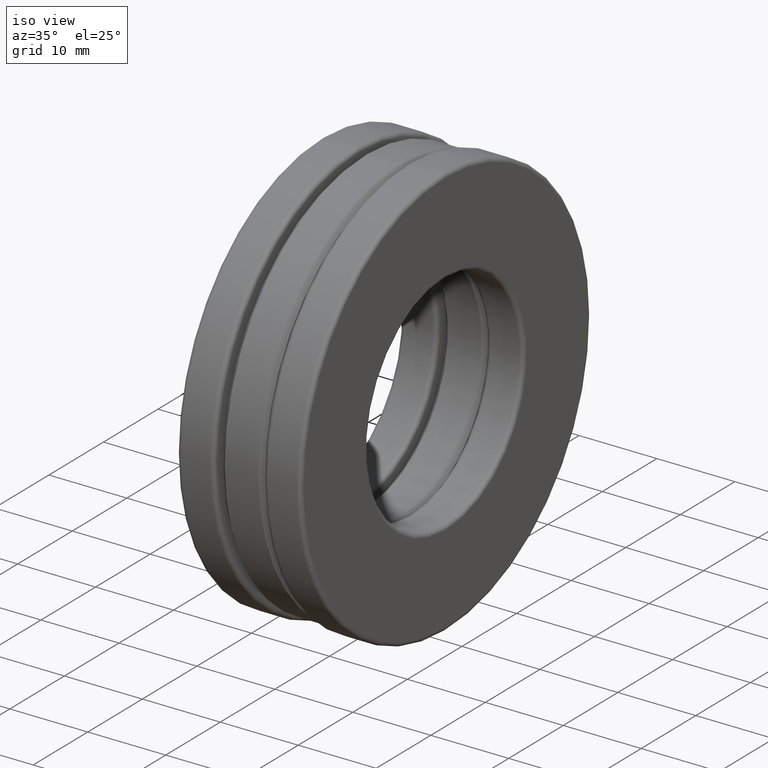
[diagram: clean part render]
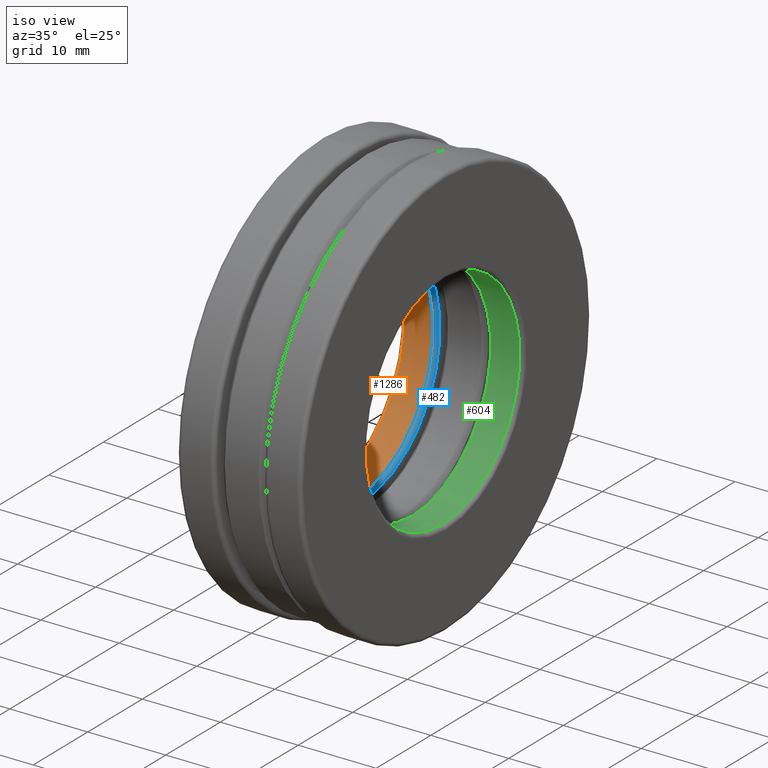
[diagram: same view with three faces highlighted in distinct colors, each labeled with its STEP entity id]
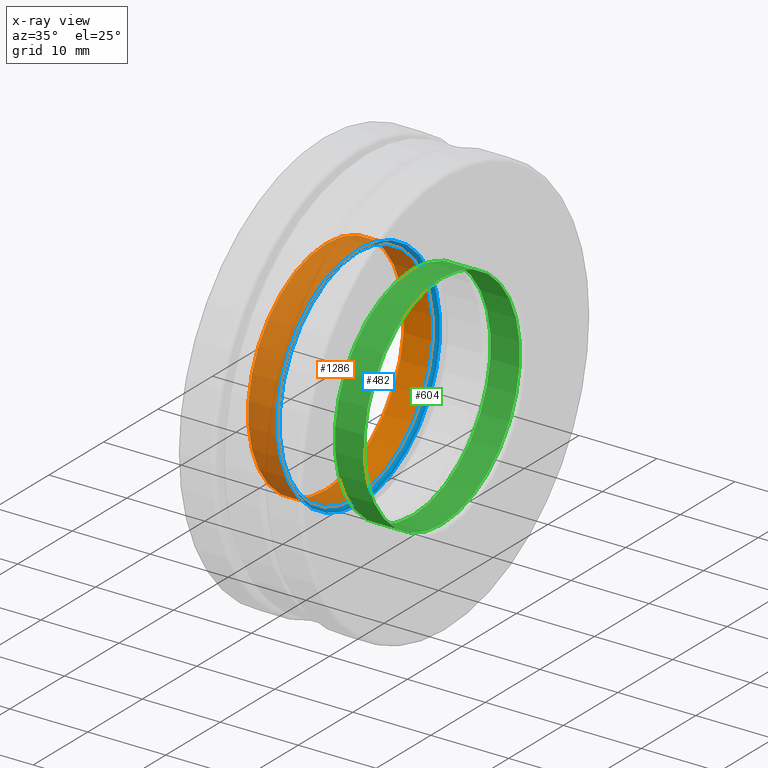
[diagram: x-ray of the same camera — body ghosted, the three highlighted faces saturated]
A machine part, iso view with three faces highlighted in distinct colors.
The next image is the same camera in x-ray (body ghosted, the three faces saturated) — at least one of them is partly hidden behind the body in this view.
Their STEP definitions:

[orange] entity #1286 — the highlighted cylindrical surface (bore or boss wall) has radius 14.2875 mm, axis along (-1, -0, -0).
#43 = DIRECTION ( 'NONE',  ( -1.000000000000000000, -0.0000000000000000000, -0.0000000000000000000 ) ) ;
#48 = CYLINDRICAL_SURFACE ( 'NONE', #634, 0.5625000000000000000 ) ;
#177 = CARTESIAN_POINT ( 'NONE',  ( -0.2925000000000000400, 0.0000000000000000000, 0.5625000000000000000 ) ) ;
#182 = FACE_OUTER_BOUND ( 'NONE', #1213, .T. ) ;
#225 = DIRECTION ( 'NONE',  ( 0.0000000000000000000, 0.0000000000000000000, 1.000000000000000000 ) ) ;
#305 = CARTESIAN_POINT ( 'NONE',  ( -0.2925000000000000400, 0.0000000000000000000, 0.0000000000000000000 ) ) ;
#339 = AXIS2_PLACEMENT_3D ( 'NONE', #379, #947, #837 ) ;
#379 = CARTESIAN_POINT ( 'NONE',  ( -0.1450000000000000500, 0.0000000000000000000, 0.0000000000000000000 ) ) ;
#599 = EDGE_CURVE ( 'NONE', #1169, #1169, #955, .T. ) ;
#634 = AXIS2_PLACEMENT_3D ( 'NONE', #1065, #43, #225 ) ;
#709 = AXIS2_PLACEMENT_3D ( 'NONE', #305, #1115, #1441 ) ;
#806 = ORIENTED_EDGE ( 'NONE', *, *, #1416, .T. ) ;
#837 = DIRECTION ( 'NONE',  ( 0.0000000000000000000, 0.0000000000000000000, 1.000000000000000000 ) ) ;
#884 = VERTEX_POINT ( 'NONE', #177 ) ;
#947 = DIRECTION ( 'NONE',  ( -1.000000000000000000, -0.0000000000000000000, -0.0000000000000000000 ) ) ;
#955 = CIRCLE ( 'NONE', #339, 0.5625000000000000000 ) ;
#1033 = FACE_OUTER_BOUND ( 'NONE', #1251, .T. ) ;
#1065 = CARTESIAN_POINT ( 'NONE',  ( 0.0000000000000000000, 0.0000000000000000000, 0.0000000000000000000 ) ) ;
#1115 = DIRECTION ( 'NONE',  ( -1.000000000000000000, -0.0000000000000000000, -0.0000000000000000000 ) ) ;
#1169 = VERTEX_POINT ( 'NONE', #1216 ) ;
#1195 = ORIENTED_EDGE ( 'NONE', *, *, #599, .F. ) ;
#1213 = EDGE_LOOP ( 'NONE', ( #806 ) ) ;
#1216 = CARTESIAN_POINT ( 'NONE',  ( -0.1450000000000000500, 0.0000000000000000000, 0.5625000000000000000 ) ) ;
#1251 = EDGE_LOOP ( 'NONE', ( #1195 ) ) ;
#1286 = ADVANCED_FACE ( 'NONE', ( #182, #1033 ), #48, .F. ) ;
#1416 = EDGE_CURVE ( 'NONE', #884, #884, #1438, .T. ) ;
#1438 = CIRCLE ( 'NONE', #709, 0.5625000000000000000 ) ;
#1441 = DIRECTION ( 'NONE',  ( 0.0000000000000000000, 0.0000000000000000000, 1.000000000000000000 ) ) ;

[blue] entity #482 — the highlighted toroidal blend (fillet) surface has major radius 14.7955 mm and minor (blend) radius 0.508 mm.
#47 = AXIS2_PLACEMENT_3D ( 'NONE', #78, #1339, #759 ) ;
#78 = CARTESIAN_POINT ( 'NONE',  ( -0.1450000000000000500, 0.0000000000000000000, 0.0000000000000000000 ) ) ;
#141 = EDGE_LOOP ( 'NONE', ( #1075 ) ) ;
#333 = ORIENTED_EDGE ( 'NONE', *, *, #599, .T. ) ;
#339 = AXIS2_PLACEMENT_3D ( 'NONE', #379, #947, #837 ) ;
#379 = CARTESIAN_POINT ( 'NONE',  ( -0.1450000000000000500, 0.0000000000000000000, 0.0000000000000000000 ) ) ;
#408 = CARTESIAN_POINT ( 'NONE',  ( -0.1250000000000000600, 0.0000000000000000000, 0.5825000000000000200 ) ) ;
#482 = ADVANCED_FACE ( 'NONE', ( #622, #1440 ), #1246, .T. ) ;
#527 = EDGE_LOOP ( 'NONE', ( #333 ) ) ;
#599 = EDGE_CURVE ( 'NONE', #1169, #1169, #955, .T. ) ;
#622 = FACE_OUTER_BOUND ( 'NONE', #141, .T. ) ;
#708 = DIRECTION ( 'NONE',  ( -1.000000000000000000, -0.0000000000000000000, -0.0000000000000000000 ) ) ;
#759 = DIRECTION ( 'NONE',  ( 0.0000000000000000000, 0.0000000000000000000, 1.000000000000000000 ) ) ;
#815 = DIRECTION ( 'NONE',  ( 0.0000000000000000000, 0.0000000000000000000, 1.000000000000000000 ) ) ;
#837 = DIRECTION ( 'NONE',  ( 0.0000000000000000000, 0.0000000000000000000, 1.000000000000000000 ) ) ;
#928 = AXIS2_PLACEMENT_3D ( 'NONE', #1280, #708, #815 ) ;
#947 = DIRECTION ( 'NONE',  ( -1.000000000000000000, -0.0000000000000000000, -0.0000000000000000000 ) ) ;
#955 = CIRCLE ( 'NONE', #339, 0.5625000000000000000 ) ;
#1075 = ORIENTED_EDGE ( 'NONE', *, *, #1221, .F. ) ;
#1123 = CIRCLE ( 'NONE', #928, 0.5825000000000000200 ) ;
#1138 = VERTEX_POINT ( 'NONE', #408 ) ;
#1169 = VERTEX_POINT ( 'NONE', #1216 ) ;
#1216 = CARTESIAN_POINT ( 'NONE',  ( -0.1450000000000000500, 0.0000000000000000000, 0.5625000000000000000 ) ) ;
#1221 = EDGE_CURVE ( 'NONE', #1138, #1138, #1123, .T. ) ;
#1246 = TOROIDAL_SURFACE ( 'NONE', #47, 0.5825000000000000200, 0.02000000000000003500 ) ;
#1280 = CARTESIAN_POINT ( 'NONE',  ( -0.1250000000000000600, 0.0000000000000000000, 0.0000000000000000000 ) ) ;
#1339 = DIRECTION ( 'NONE',  ( -1.000000000000000000, -0.0000000000000000000, -0.0000000000000000000 ) ) ;
#1440 = FACE_OUTER_BOUND ( 'NONE', #527, .T. ) ;

[green] entity #604 — the highlighted cylindrical surface (bore or boss wall) has radius 14.2875 mm, axis along (-1, -0, -0).
#55 = EDGE_CURVE ( 'NONE', #904, #904, #1200, .T. ) ;
#60 = EDGE_CURVE ( 'NONE', #452, #452, #576, .T. ) ;
#189 = ORIENTED_EDGE ( 'NONE', *, *, #55, .F. ) ;
#193 = AXIS2_PLACEMENT_3D ( 'NONE', #451, #766, #1360 ) ;
#273 = FACE_OUTER_BOUND ( 'NONE', #545, .T. ) ;
#319 = DIRECTION ( 'NONE',  ( -1.000000000000000000, -0.0000000000000000000, -0.0000000000000000000 ) ) ;
#397 = AXIS2_PLACEMENT_3D ( 'NONE', #894, #319, #664 ) ;
#451 = CARTESIAN_POINT ( 'NONE',  ( 0.2925000000000000400, 0.0000000000000000000, 0.0000000000000000000 ) ) ;
#452 = VERTEX_POINT ( 'NONE', #1332 ) ;
#545 = EDGE_LOOP ( 'NONE', ( #189 ) ) ;
#555 = ORIENTED_EDGE ( 'NONE', *, *, #60, .T. ) ;
#576 = CIRCLE ( 'NONE', #397, 0.5625000000000000000 ) ;
#604 = ADVANCED_FACE ( 'NONE', ( #1458, #273 ), #1157, .F. ) ;
#664 = DIRECTION ( 'NONE',  ( 0.0000000000000000000, 0.0000000000000000000, 1.000000000000000000 ) ) ;
#761 = EDGE_LOOP ( 'NONE', ( #555 ) ) ;
#766 = DIRECTION ( 'NONE',  ( -1.000000000000000000, -0.0000000000000000000, -0.0000000000000000000 ) ) ;
#849 = DIRECTION ( 'NONE',  ( -1.000000000000000000, -0.0000000000000000000, -0.0000000000000000000 ) ) ;
#894 = CARTESIAN_POINT ( 'NONE',  ( 0.1450000000000000500, 0.0000000000000000000, 0.0000000000000000000 ) ) ;
#904 = VERTEX_POINT ( 'NONE', #1103 ) ;
#952 = CARTESIAN_POINT ( 'NONE',  ( 0.0000000000000000000, 0.0000000000000000000, 0.0000000000000000000 ) ) ;
#1063 = AXIS2_PLACEMENT_3D ( 'NONE', #952, #849, #1186 ) ;
#1103 = CARTESIAN_POINT ( 'NONE',  ( 0.2925000000000000400, 0.0000000000000000000, 0.5625000000000000000 ) ) ;
#1157 = CYLINDRICAL_SURFACE ( 'NONE', #1063, 0.5625000000000000000 ) ;
#1186 = DIRECTION ( 'NONE',  ( 0.0000000000000000000, 0.0000000000000000000, 1.000000000000000000 ) ) ;
#1200 = CIRCLE ( 'NONE', #193, 0.5625000000000000000 ) ;
#1332 = CARTESIAN_POINT ( 'NONE',  ( 0.1450000000000000500, 0.0000000000000000000, 0.5625000000000000000 ) ) ;
#1360 = DIRECTION ( 'NONE',  ( 0.0000000000000000000, 0.0000000000000000000, 1.000000000000000000 ) ) ;
#1458 = FACE_OUTER_BOUND ( 'NONE', #761, .T. ) ;